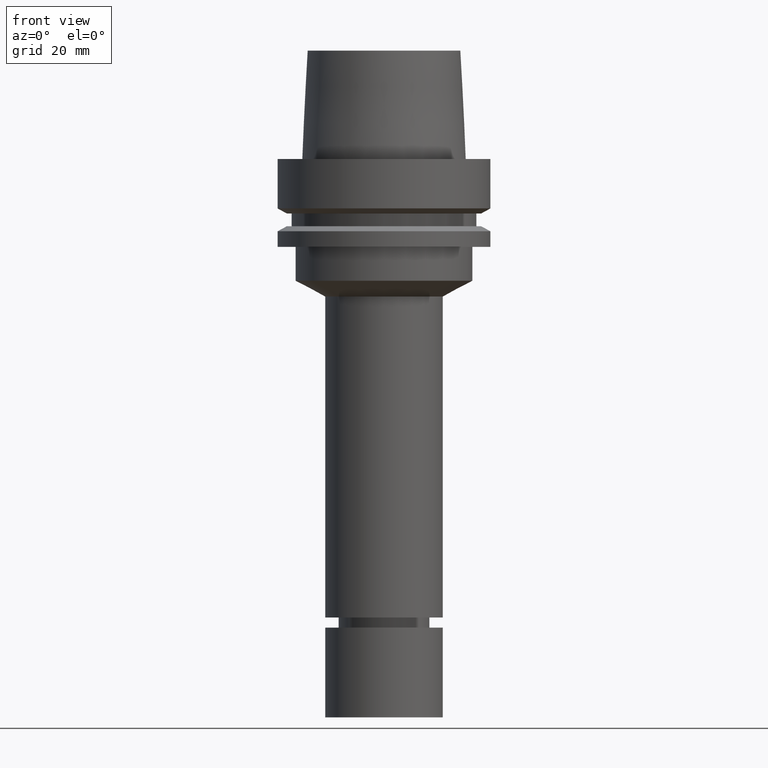
[diagram: clean part render]
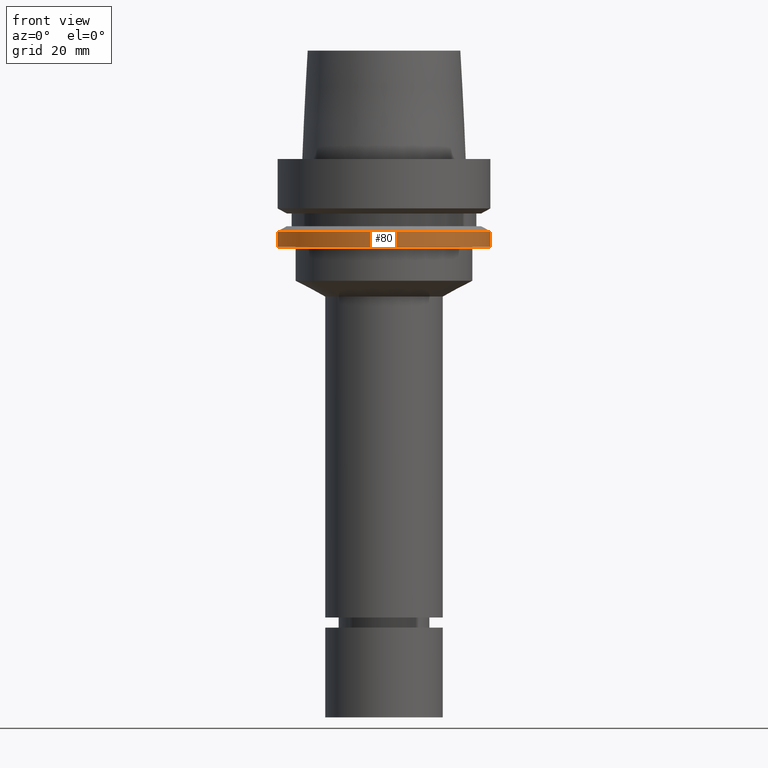
[diagram: same view with one face highlighted and labeled with its STEP entity id]
A machine part, front view. The second image highlights one B-rep face of the part: STEP entity #80.
In plain terms, the highlighted cylindrical surface (bore or boss wall) has radius 31.5 mm, axis along (-0, -0, 1).
Its self-contained STEP definition (entity closure, byte-faithful):
#80=ADVANCED_FACE('Unnamed[1]',(#216,#217),#218,.T.);
#142=EDGE_CURVE('Unnamed[1]',#312,#312,#313,.T.);
#175=EDGE_CURVE('Unnamed[1]',#365,#365,#366,.T.);
#216=FACE_BOUND('',#408,.T.);
#217=FACE_BOUND('',#409,.T.);
#218=CYLINDRICAL_SURFACE('',#410,31.4999999999999);
#312=VERTEX_POINT('',#528);
#313=CIRCLE('',#529,31.5);
#365=VERTEX_POINT('',#594);
#366=CIRCLE('',#595,31.4999999999998);
#408=EDGE_LOOP('',(#631));
#409=EDGE_LOOP('',(#632));
#410=AXIS2_PLACEMENT_3D('',#633,#634,#635);
#528=CARTESIAN_POINT('',(1.30899429078397E-015,31.5,-21.3774990747592));
#529=AXIS2_PLACEMENT_3D('',#737,#738,#739);
#594=CARTESIAN_POINT('',(1.59204083889155E-015,31.4999999999998,-25.9999999999999));
#595=AXIS2_PLACEMENT_3D('',#797,#798,#799);
#631=ORIENTED_EDGE('',*,*,#142,.F.);
#632=ORIENTED_EDGE('',*,*,#175,.T.);
#633=CARTESIAN_POINT('',(1.45051756483776E-015,2.90103512967552E-015,-23.6887495373796));
#634=DIRECTION('',(-6.12323399573677E-017,-1.22464679914735E-016,1.0));
#635=DIRECTION('',(-1.23259516440783E-032,1.0,1.22464679914735E-016));
#737=CARTESIAN_POINT('',(1.30899429078397E-015,2.61798858156794E-015,-21.3774990747592));
#738=DIRECTION('',(-6.12323399573677E-017,-1.22464679914735E-016,1.0));
#739=DIRECTION('',(-1.23259516440783E-032,1.0,1.22464679914735E-016));
#797=CARTESIAN_POINT('',(1.59204083889155E-015,3.1840816777831E-015,-25.9999999999999));
#798=DIRECTION('',(-6.12323399573676E-017,-1.22464679914735E-016,1.0));
#799=DIRECTION('',(-1.23259516440783E-032,1.0,1.22464679914735E-016));